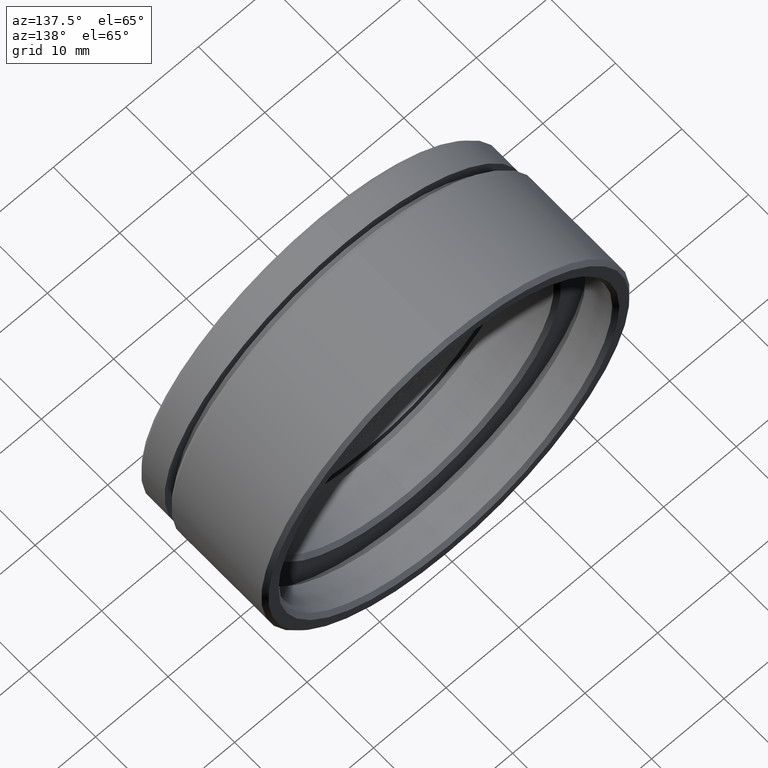
[diagram: clean part render]
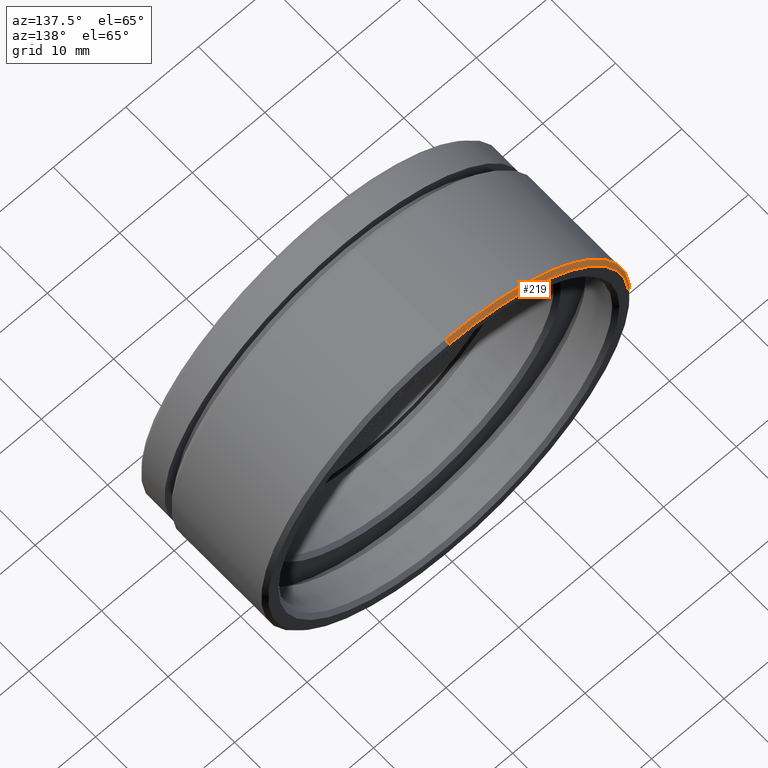
[diagram: same view with one face highlighted and labeled with its STEP entity id]
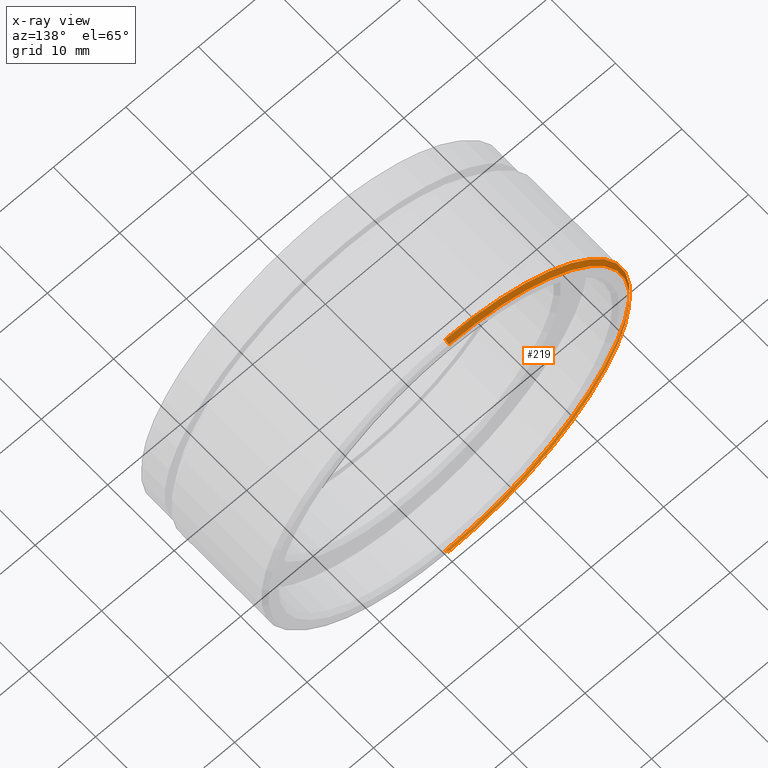
[diagram: x-ray of the same camera — body ghosted, the highlighted face saturated]
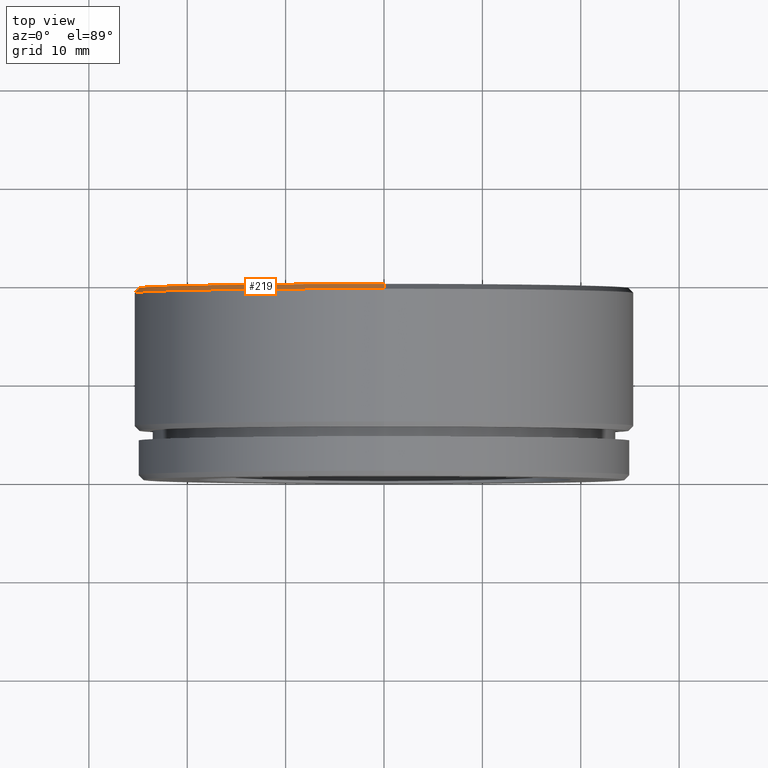
[diagram: same view with one face highlighted and labeled with its STEP entity id]
A machine part, auxiliary view. The second image highlights one B-rep face of the part: STEP entity #219.
The next image is the same camera in x-ray: the body ghosted, the highlighted face saturated — about 0% of this face is hidden behind the body in this view.
A second angle (top view) of the same face is appended — the face is thin or edge-on in the first view.
In plain terms, the highlighted conical surface has half-angle 45 deg.
Its self-contained STEP definition (entity closure, byte-faithful):
#39 = DIRECTION ( 'NONE',  ( 0.0000000000000000000, 0.0000000000000000000, -1.000000000000000000 ) ) ;
#84 = EDGE_LOOP ( 'NONE', ( #958, #1026, #414, #326 ) ) ;
#92 = CARTESIAN_POINT ( 'NONE',  ( 0.0000000000000000000, 19.00000000000000000, 0.0000000000000000000 ) ) ;
#106 = DIRECTION ( 'NONE',  ( 0.0000000000000000000, -0.7071067811865500200, -0.7071067811865450200 ) ) ;
#127 = CIRCLE ( 'NONE', #588, 24.90000000000000200 ) ;
#144 = AXIS2_PLACEMENT_3D ( 'NONE', #209, #373, #39 ) ;
#148 = CARTESIAN_POINT ( 'NONE',  ( 3.110602869834276900E-015, 19.00000000000000000, 25.39999999999999900 ) ) ;
#162 = VERTEX_POINT ( 'NONE', #577 ) ;
#209 = CARTESIAN_POINT ( 'NONE',  ( 0.0000000000000000000, 19.00000000000000000, 0.0000000000000000000 ) ) ;
#219 = ADVANCED_FACE ( 'NONE', ( #1028 ), #1016, .T. ) ;
#273 = VECTOR ( 'NONE', #106, 1000.000000000000000 ) ;
#326 = ORIENTED_EDGE ( 'NONE', *, *, #932, .F. ) ;
#365 = CARTESIAN_POINT ( 'NONE',  ( 0.0000000000000000000, 19.00000000000000000, -25.39999999999999900 ) ) ;
#373 = DIRECTION ( 'NONE',  ( -0.0000000000000000000, -1.000000000000000000, -0.0000000000000000000 ) ) ;
#412 = DIRECTION ( 'NONE',  ( 0.0000000000000000000, 0.0000000000000000000, -1.000000000000000000 ) ) ;
#414 = ORIENTED_EDGE ( 'NONE', *, *, #693, .T. ) ;
#452 = DIRECTION ( 'NONE',  ( -0.0000000000000000000, -1.000000000000000000, -0.0000000000000000000 ) ) ;
#456 = LINE ( 'NONE', #641, #273 ) ;
#534 = CARTESIAN_POINT ( 'NONE',  ( 3.110602869834276900E-015, 19.00000000000000000, 25.39999999999999900 ) ) ;
#577 = CARTESIAN_POINT ( 'NONE',  ( 0.0000000000000000000, 19.50000000000000000, -24.90000000000000200 ) ) ;
#588 = AXIS2_PLACEMENT_3D ( 'NONE', #830, #829, #597 ) ;
#597 = DIRECTION ( 'NONE',  ( 0.0000000000000000000, 0.0000000000000000000, -1.000000000000000000 ) ) ;
#623 = VECTOR ( 'NONE', #1112, 1000.000000000000000 ) ;
#641 = CARTESIAN_POINT ( 'NONE',  ( 0.0000000000000000000, 19.00000000000000000, -25.39999999999999900 ) ) ;
#693 = EDGE_CURVE ( 'NONE', #162, #1014, #456, .T. ) ;
#829 = DIRECTION ( 'NONE',  ( -0.0000000000000000000, -1.000000000000000000, -0.0000000000000000000 ) ) ;
#830 = CARTESIAN_POINT ( 'NONE',  ( 0.0000000000000000000, 19.50000000000000000, 0.0000000000000000000 ) ) ;
#891 = LINE ( 'NONE', #148, #623 ) ;
#900 = CIRCLE ( 'NONE', #1050, 25.39999999999999900 ) ;
#932 = EDGE_CURVE ( 'NONE', #959, #1014, #900, .T. ) ;
#958 = ORIENTED_EDGE ( 'NONE', *, *, #1017, .F. ) ;
#959 = VERTEX_POINT ( 'NONE', #534 ) ;
#1014 = VERTEX_POINT ( 'NONE', #365 ) ;
#1016 = CONICAL_SURFACE ( 'NONE', #144, 25.39999999999999900, 0.7853981633974447300 ) ;
#1017 = EDGE_CURVE ( 'NONE', #1085, #959, #891, .T. ) ;
#1025 = EDGE_CURVE ( 'NONE', #1085, #162, #127, .T. ) ;
#1026 = ORIENTED_EDGE ( 'NONE', *, *, #1025, .T. ) ;
#1028 = FACE_OUTER_BOUND ( 'NONE', #84, .T. ) ;
#1029 = CARTESIAN_POINT ( 'NONE',  ( 3.079986699855593100E-015, 19.50000000000000000, 24.90000000000000200 ) ) ;
#1050 = AXIS2_PLACEMENT_3D ( 'NONE', #92, #452, #412 ) ;
#1085 = VERTEX_POINT ( 'NONE', #1029 ) ;
#1112 = DIRECTION ( 'NONE',  ( 8.659560562354902000E-017, -0.7071067811865500200, 0.7071067811865450200 ) ) ;